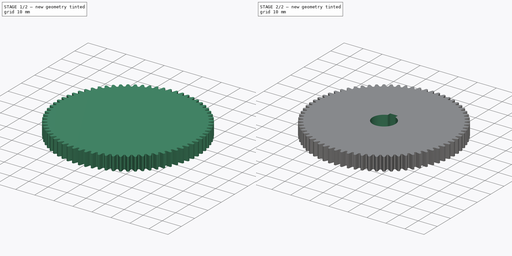
[diagram: build sequence overview — one tinted view per stage of 2, left to right]
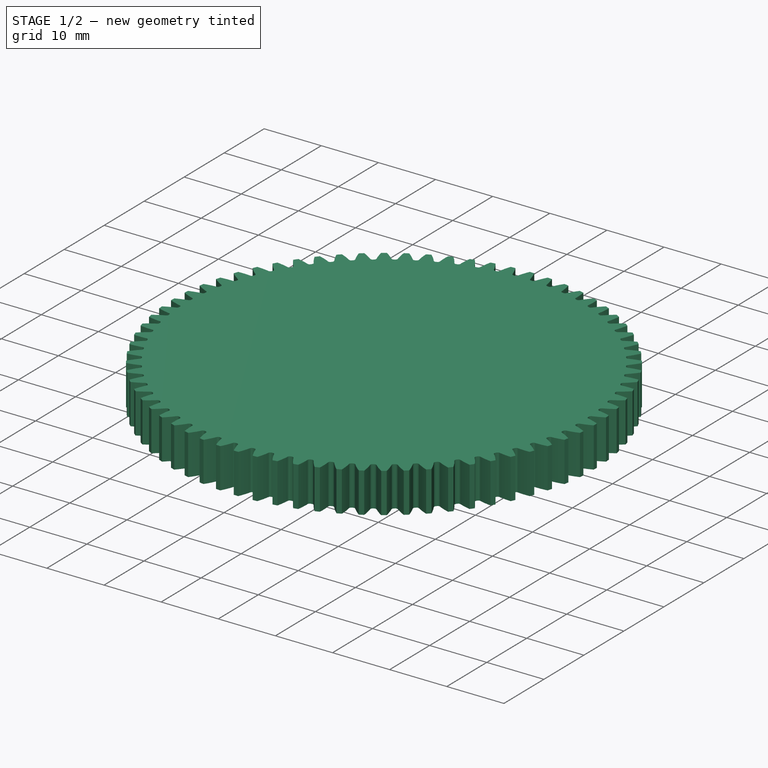
[diagram: stage 1 of 2 — iso view after this stage's code; geometry added in this stage tinted green]
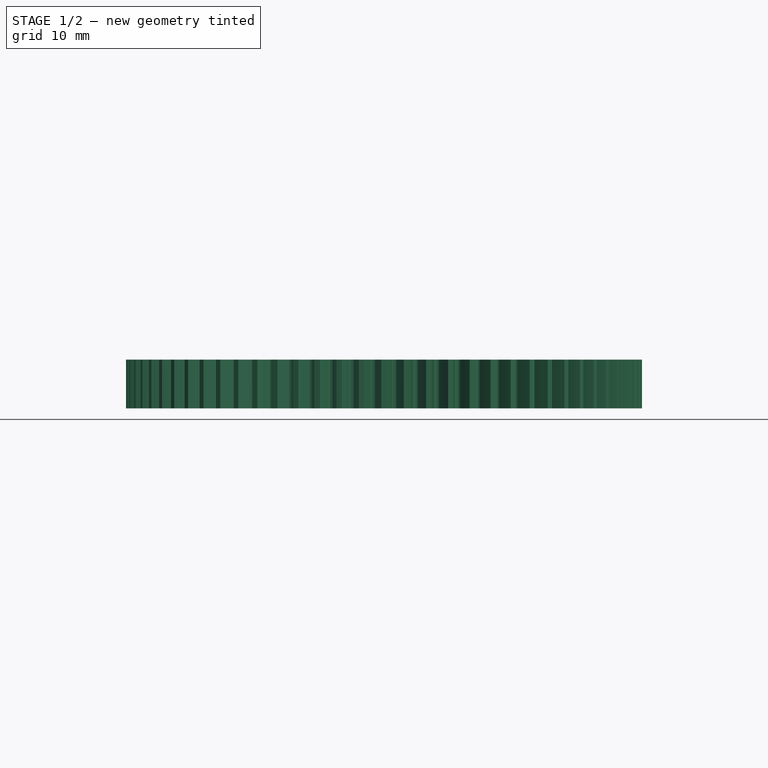
[diagram: stage 1 of 2 — front view after this stage's code; geometry added in this stage tinted green]
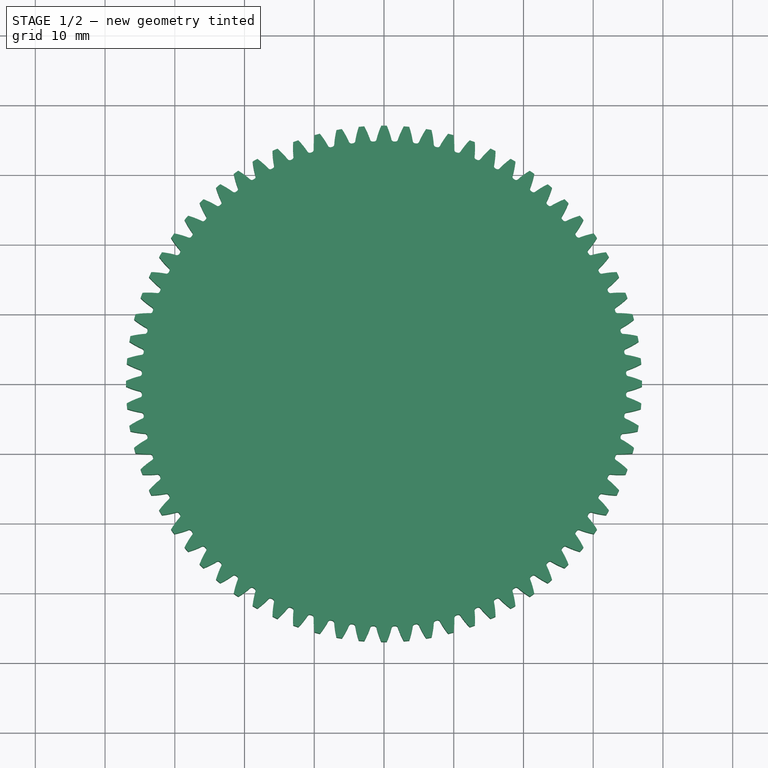
[diagram: stage 1 of 2 — top view after this stage's code; geometry added in this stage tinted green]
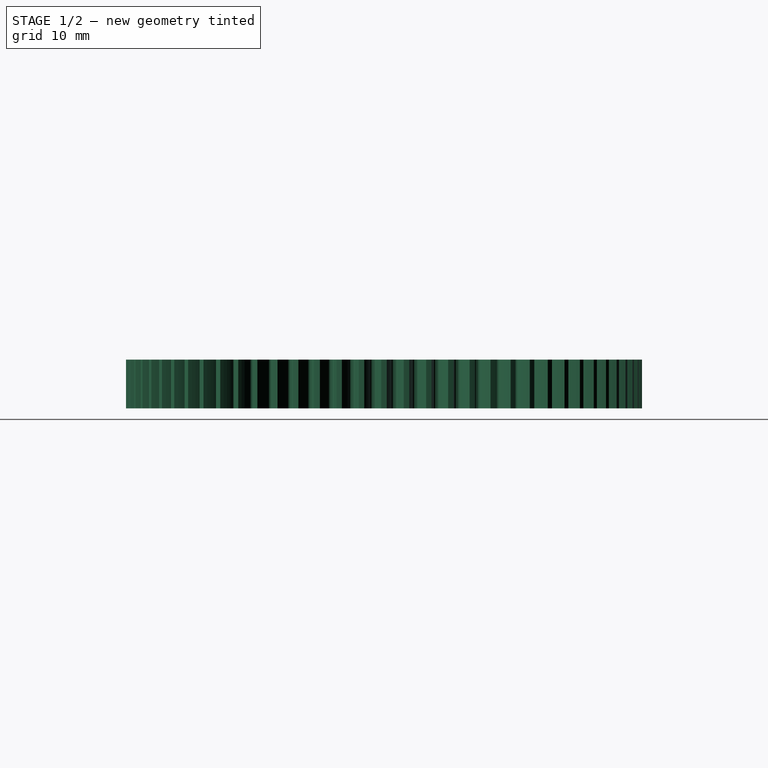
[diagram: stage 1 of 2 — right view after this stage's code; geometry added in this stage tinted green]
FCSTD DOCUMENT  (FreeCAD 0.21R33771 (Git))
Label: IngranaggioT60
License: All rights reserved
LicenseURL: http://en.wikipedia.org/wiki/All_rights_reserved
objects: Part::Part2DObjectPython×2, PartDesign::Pad×1, Sketcher::SketchObject×1, PartDesign::Pocket×1, PartDesign::Body×1
note: 8 computed .brp shape members not serialized (recipe doc carries the construction recipe); baked Part::Feature solids carry a one-line shape summary decoded from their .brp

FEATURE [Part::Part2DObjectPython] InvoluteGear  # Draft 2D object (typed FeaturePython)
  AddendumCoefficient = 1
  DedendumCoefficient = 1.25
  ExternalGear = true
  HighPrecision = true
  Modules = 1
  NumberOfTeeth = 72
  PressureAngle = 20
  ProfileShiftCoefficient = 0
  RootFilletCoefficient = 0.38
FEATURE [PartDesign::Pad] Pad
  Direction = (0,0,1)
  Length = 7
  Length2 = 10
  Profile = -> InvoluteGear
  ReferenceAxis = -> InvoluteGear [N_Axis]
  Type = 0
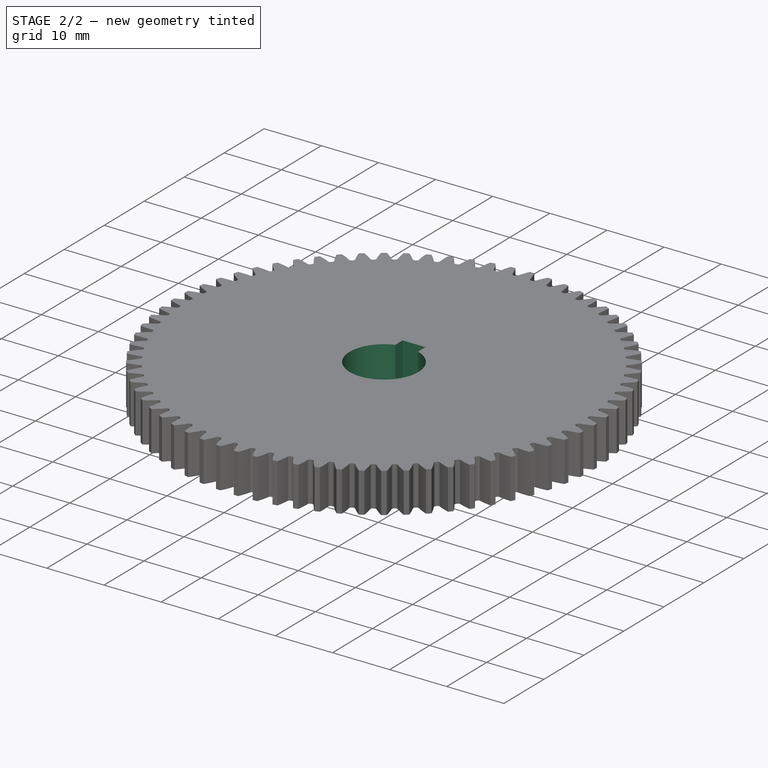
[diagram: stage 2 of 2 — iso view after this stage's code; geometry added in this stage tinted green]
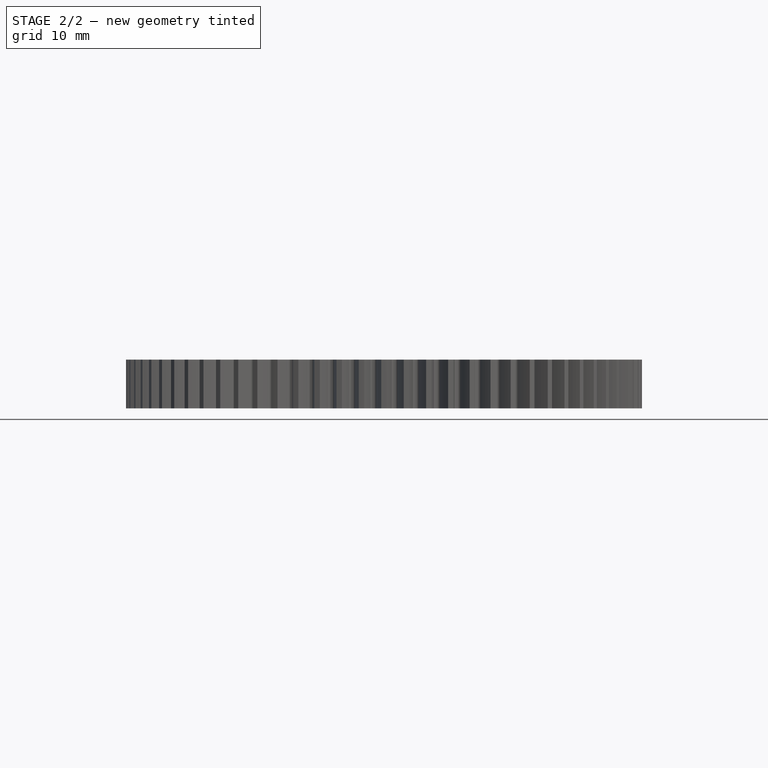
[diagram: stage 2 of 2 — front view after this stage's code; geometry added in this stage tinted green]
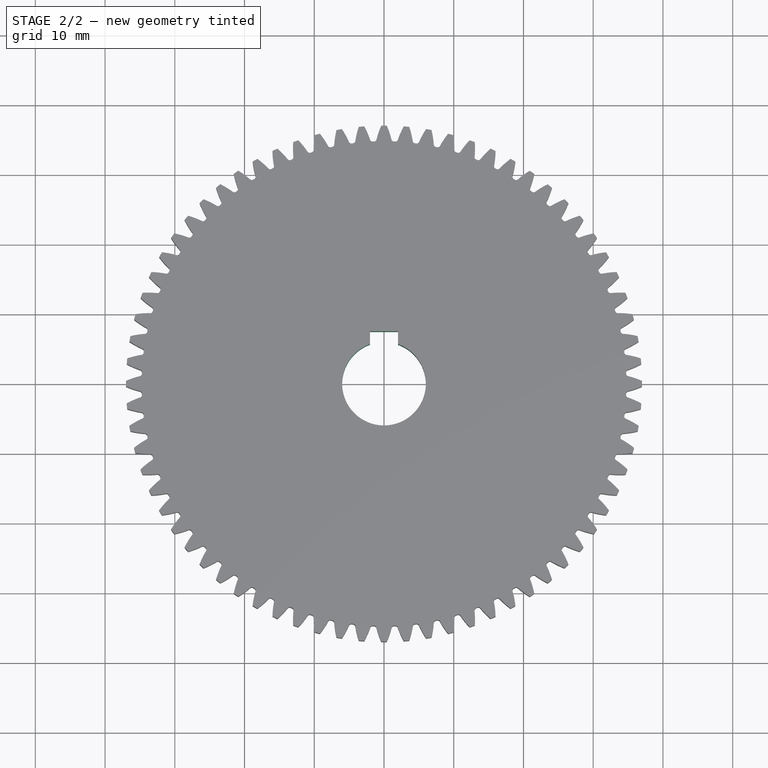
[diagram: stage 2 of 2 — top view after this stage's code; geometry added in this stage tinted green]
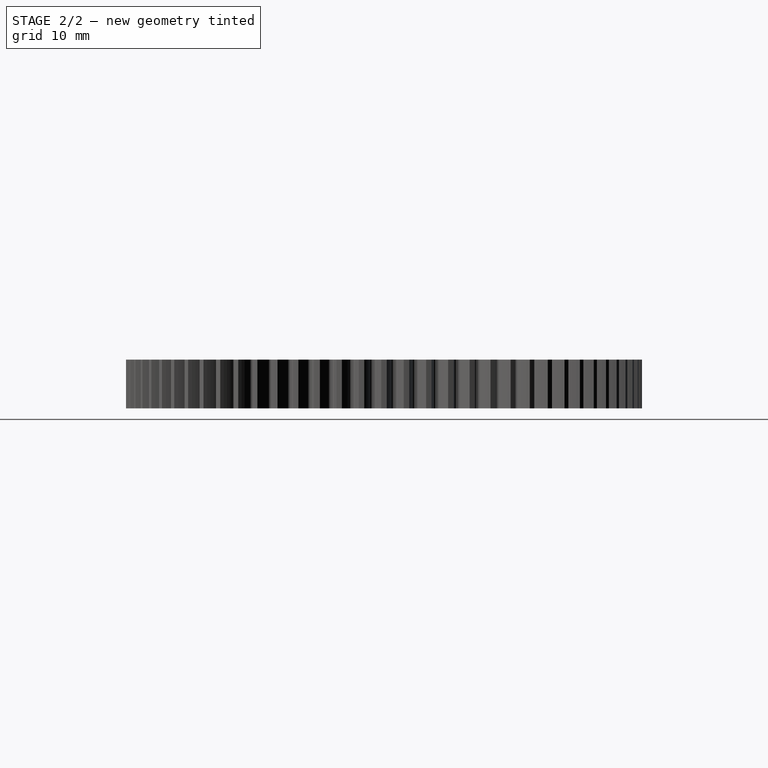
[diagram: stage 2 of 2 — right view after this stage's code; geometry added in this stage tinted green]
FEATURE [Part::Part2DObjectPython] InvoluteGear001  # Draft 2D object (typed FeaturePython)
  AddendumCoefficient = 1
  DedendumCoefficient = 1.25
  ExternalGear = true
  HighPrecision = true
  Modules = 1
  NumberOfTeeth = 72
  PressureAngle = 20
  ProfileShiftCoefficient = 0
  RootFilletCoefficient = 0.38
FEATURE [Sketcher::SketchObject] Sketch001
  FullyConstrained = true
  MapMode = 5
  Placement = pos=(0,0,7) rot=(0,0,1;0rad)
  sketch-geometry (4):
    g0: ArcOfCircle CenterX=0 CenterY=0 CenterZ=0 NormalX=0 NormalY=0 NormalZ=1 AngleXU=0 Radius=6 StartAngle=1.91063 EndAngle=7.51414
    g1: LineSegment StartX=-2 StartY=7.5 StartZ=0 EndX=2 EndY=7.5 EndZ=0
    g2: LineSegment StartX=-2 StartY=7.5 StartZ=0 EndX=-2 EndY=5.65685 EndZ=0
    g3: LineSegment StartX=2 StartY=7.5 StartZ=0 EndX=2 EndY=5.65685 EndZ=0
  constraints (11):
    c: Coincident(g0,g-1)
    c: Radius(g0) = 6
    c: Symmetric(g1,g1,g-2)
    c: DistanceX(g1,g1) = 4
    c: DistanceY(g0,g1) = 7.5
    c: Coincident(g2,g1)
    c: Vertical(g2)
    c: Coincident(g3,g1)
    c: Vertical(g3)
    c: Coincident(g2,g0)
    c: Coincident(g3,g0)
FEATURE [PartDesign::Pocket] Pocket
  BaseFeature = -> Pad
  Direction = (0,0,-1)
  Length = 5
  Length2 = 5
  Profile = -> Sketch001
  ReferenceAxis = -> Sketch001 [N_Axis]
  Type = 1
FEATURE [PartDesign::Body] Body
  Group = -> [InvoluteGear,Pad,Sketch001,Pocket]
  Origin = -> Origin
  Tip = -> Pocket
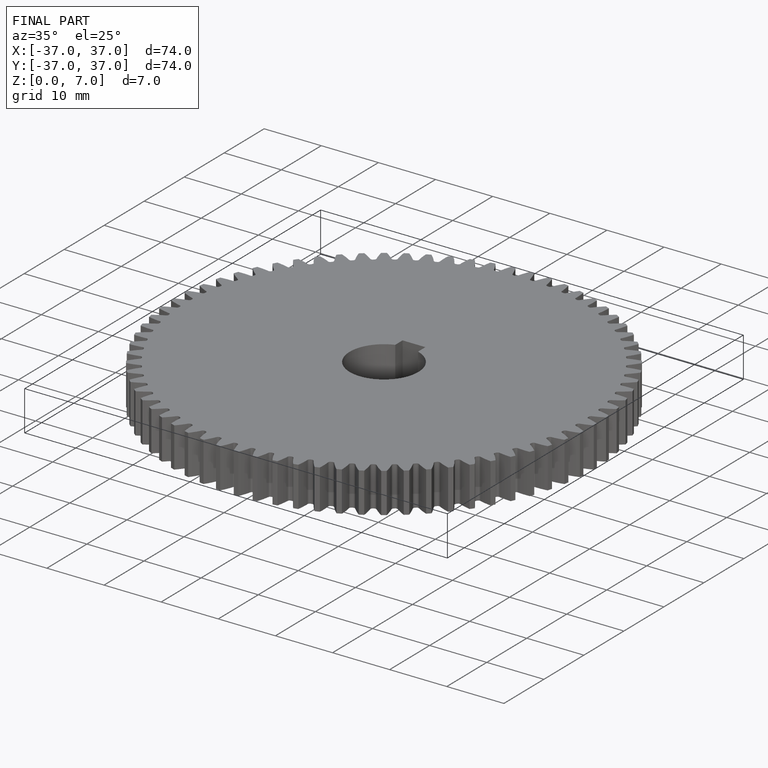
[diagram: finished part — iso view with bounding-box wireframe]
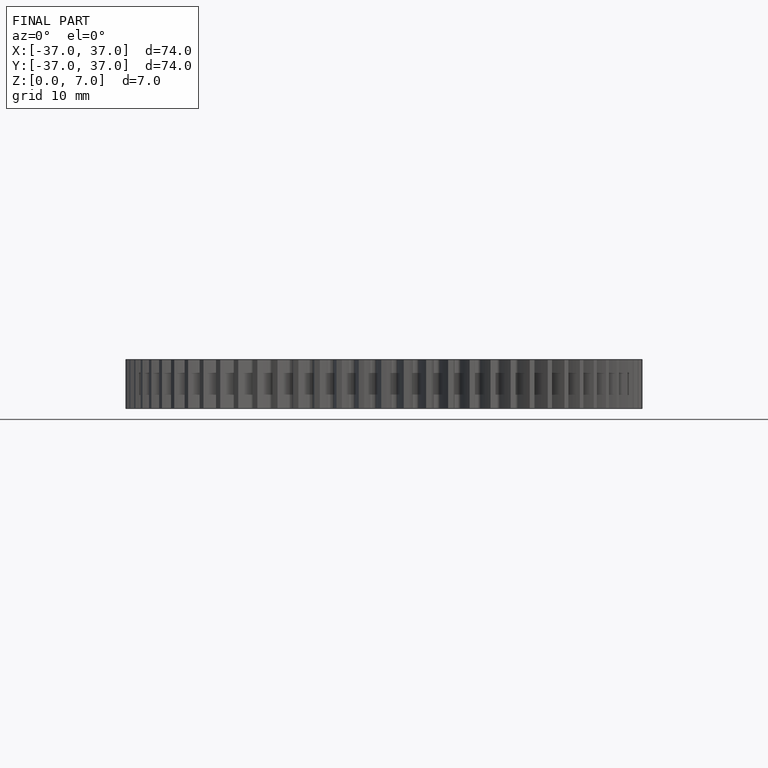
[diagram: finished part — front view with bounding-box wireframe]
